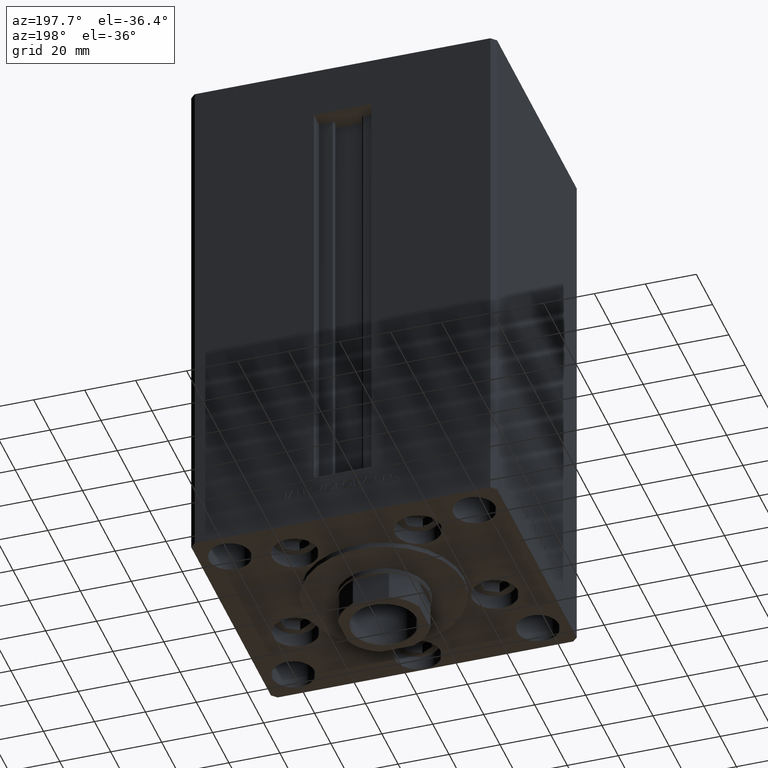
[diagram: clean part render]
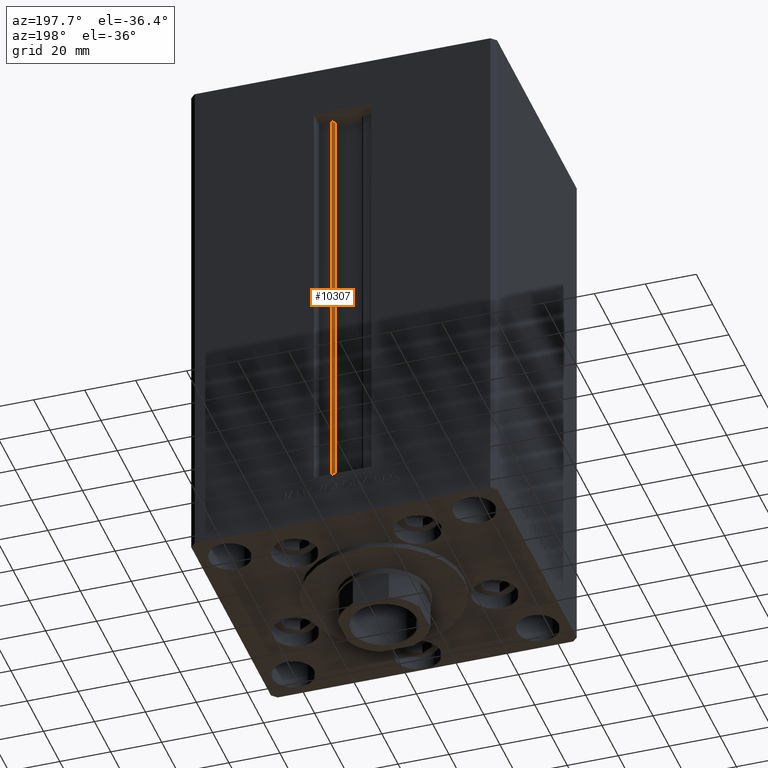
[diagram: same view with one face highlighted and labeled with its STEP entity id]
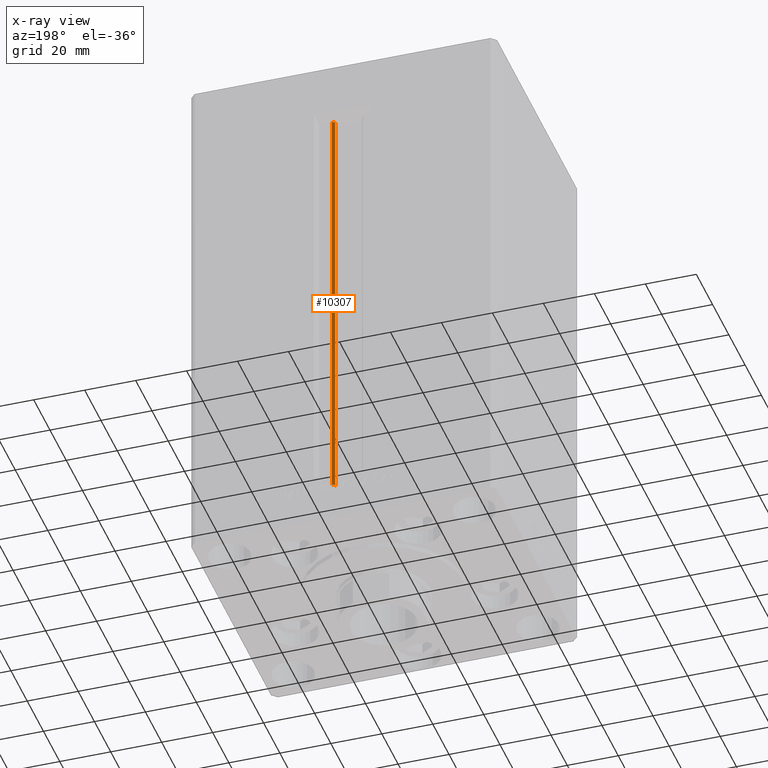
[diagram: x-ray of the same camera — body ghosted, the highlighted face saturated]
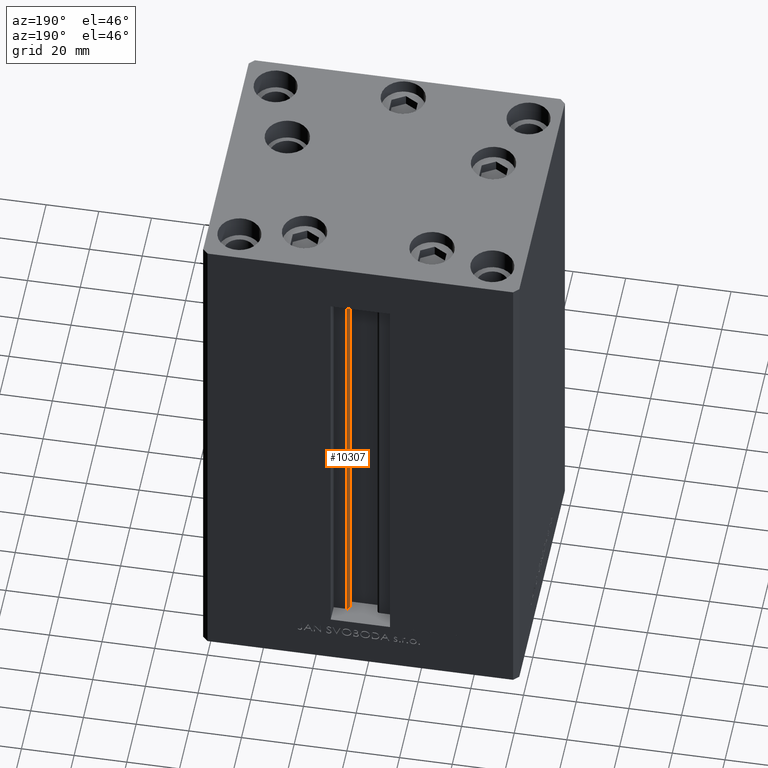
[diagram: same view with one face highlighted and labeled with its STEP entity id]
A machine part, auxiliary view. The second image highlights one B-rep face of the part: STEP entity #10307.
The next image is the same camera in x-ray: the body ghosted, the highlighted face saturated — about 0% of this face is hidden behind the body in this view.
A second angle (auxiliary view) of the same face is appended — the face is thin or edge-on in the first view.
In plain terms, the highlighted cylindrical surface (edge-blend (fillet) strip) has radius 0.9333 mm, axis along (0, 0, 1).
Its self-contained STEP definition (entity closure, byte-faithful):
#44 = EDGE_CURVE ( 'NONE', #15872, #17297, #37708, .T. ) ;
#759 = EDGE_CURVE ( 'NONE', #15872, #42808, #45585, .T. ) ;
#943 = LINE ( 'NONE', #39220, #14148 ) ;
#3224 = CARTESIAN_POINT ( 'NONE',  ( 5.375042956467941835, 43.09999999999898534, 168.5000000000000000 ) ) ;
#5159 = DIRECTION ( 'NONE',  ( -0.000000000000000000, -0.000000000000000000, 1.000000000000000000 ) ) ;
#6892 = CARTESIAN_POINT ( 'NONE',  ( 6.183333333334001480, 44.50000000000000000, 168.5000000000000000 ) ) ;
#7275 = ORIENTED_EDGE ( 'NONE', *, *, #39546, .F. ) ;
#7774 = AXIS2_PLACEMENT_3D ( 'NONE', #16202, #42080, #38345 ) ;
#9291 = ORIENTED_EDGE ( 'NONE', *, *, #44, .F. ) ;
#10307 = ADVANCED_FACE ( 'NONE', ( #15420 ), #11703, .T. ) ;
#11302 = EDGE_CURVE ( 'NONE', #42808, #48993, #29214, .T. ) ;
#11703 = CYLINDRICAL_SURFACE ( 'NONE', #43472, 0.9333333333340068094 ) ;
#14148 = VECTOR ( 'NONE', #5159, 1000.000000000000000 ) ;
#14620 = DIRECTION ( 'NONE',  ( 1.000000000000000000, 0.000000000000000000, 0.000000000000000000 ) ) ;
#15250 = CARTESIAN_POINT ( 'NONE',  ( 5.375042956467942723, 43.09999999999898534, 0.000000000000000000 ) ) ;
#15420 = FACE_OUTER_BOUND ( 'NONE', #43277, .T. ) ;
#15872 = VERTEX_POINT ( 'NONE', #43418 ) ;
#16202 = CARTESIAN_POINT ( 'NONE',  ( 6.183333333334001480, 43.56666666666598786, 168.5000000000000000 ) ) ;
#16254 = AXIS2_PLACEMENT_3D ( 'NONE', #40987, #48695, #14620 ) ;
#17297 = VERTEX_POINT ( 'NONE', #40865 ) ;
#22412 = CARTESIAN_POINT ( 'NONE',  ( 6.183333333334001480, 43.56666666666598786, 0.000000000000000000 ) ) ;
#24155 = ORIENTED_EDGE ( 'NONE', *, *, #759, .T. ) ;
#29214 = CIRCLE ( 'NONE', #7774, 0.9333333333340068094 ) ;
#30113 = DIRECTION ( 'NONE',  ( -0.000000000000000000, -0.000000000000000000, 1.000000000000000000 ) ) ;
#30438 = DIRECTION ( 'NONE',  ( -0.000000000000000000, -0.000000000000000000, 1.000000000000000000 ) ) ;
#30615 = VECTOR ( 'NONE', #30438, 1000.000000000000000 ) ;
#34338 = DIRECTION ( 'NONE',  ( 1.000000000000000000, 0.000000000000000000, 0.000000000000000000 ) ) ;
#37708 = CIRCLE ( 'NONE', #16254, 0.9333333333340068094 ) ;
#38345 = DIRECTION ( 'NONE',  ( 1.000000000000000000, 0.000000000000000000, 0.000000000000000000 ) ) ;
#39220 = CARTESIAN_POINT ( 'NONE',  ( 6.183333333334001480, 44.50000000000000000, 0.000000000000000000 ) ) ;
#39546 = EDGE_CURVE ( 'NONE', #17297, #48993, #943, .T. ) ;
#40865 = CARTESIAN_POINT ( 'NONE',  ( 6.183333333334001480, 44.50000000000000000, 0.000000000000000000 ) ) ;
#40987 = CARTESIAN_POINT ( 'NONE',  ( 6.183333333334001480, 43.56666666666598786, 0.000000000000000000 ) ) ;
#42080 = DIRECTION ( 'NONE',  ( 0.000000000000000000, 0.000000000000000000, -1.000000000000000000 ) ) ;
#42808 = VERTEX_POINT ( 'NONE', #3224 ) ;
#43277 = EDGE_LOOP ( 'NONE', ( #7275, #9291, #24155, #48896 ) ) ;
#43418 = CARTESIAN_POINT ( 'NONE',  ( 5.375042956467942723, 43.09999999999898534, 0.000000000000000000 ) ) ;
#43472 = AXIS2_PLACEMENT_3D ( 'NONE', #22412, #30113, #34338 ) ;
#45585 = LINE ( 'NONE', #15250, #30615 ) ;
#48695 = DIRECTION ( 'NONE',  ( -0.000000000000000000, -0.000000000000000000, -1.000000000000000000 ) ) ;
#48896 = ORIENTED_EDGE ( 'NONE', *, *, #11302, .T. ) ;
#48993 = VERTEX_POINT ( 'NONE', #6892 ) ;